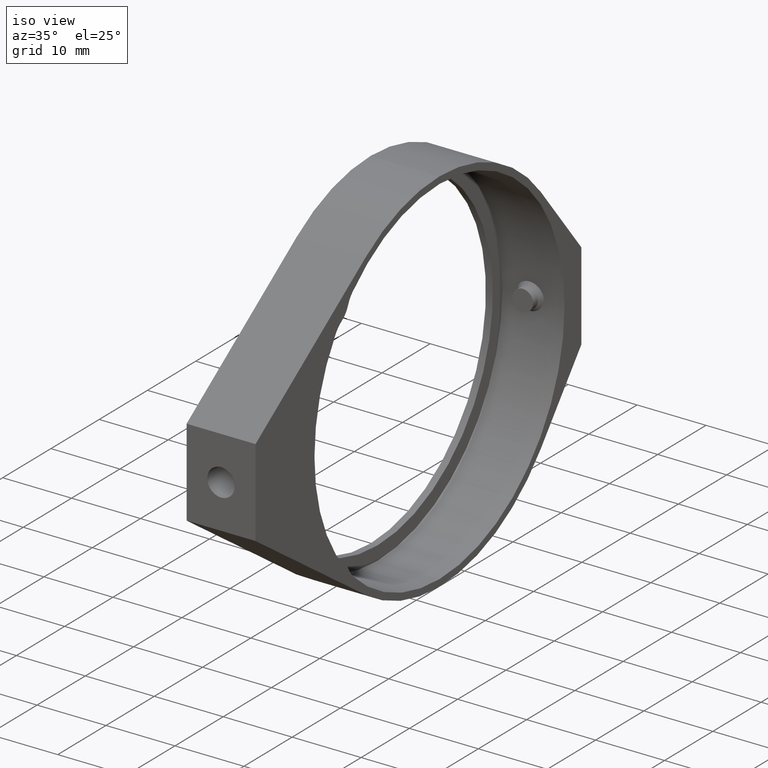
[diagram: clean part render]
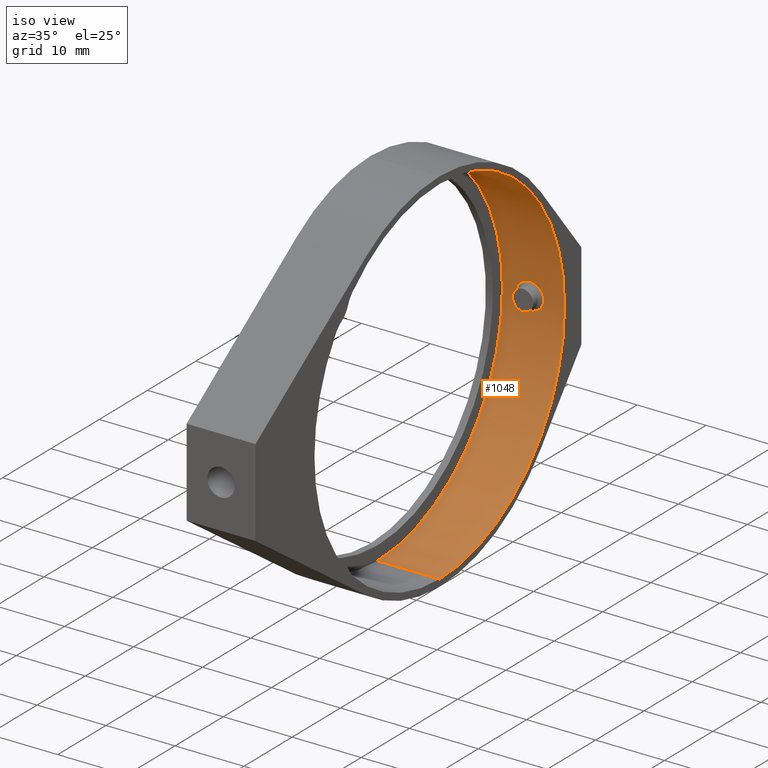
[diagram: same view with one face highlighted and labeled with its STEP entity id]
A machine part, iso view. The second image highlights one B-rep face of the part: STEP entity #1048.
In plain terms, the highlighted cylindrical surface (partial cylindrical patch) has radius 25.9 mm, axis along (1, -0, -0).
Its self-contained STEP definition (entity closure, byte-faithful):
#54 = CARTESIAN_POINT ( 'NONE',  ( -13.73579953026559508, 28.22271537698156507, 65.89323594368823933 ) ) ;
#59 = EDGE_CURVE ( 'NONE', #255, #584, #500, .T. ) ;
#64 = CARTESIAN_POINT ( 'NONE',  ( -14.95328171391102323, 28.27246623560505867, 67.38978657148210516 ) ) ;
#73 = CIRCLE ( 'NONE', #1510, 25.90000000000000568 ) ;
#83 = CARTESIAN_POINT ( 'NONE',  ( -14.13493462010249324, 28.23247269268667026, 68.94124334256203213 ) ) ;
#85 = VERTEX_POINT ( 'NONE', #998 ) ;
#109 = CARTESIAN_POINT ( 'NONE',  ( -12.87480107323097478, 28.22319709639868890, 65.90298586691871208 ) ) ;
#117 = CARTESIAN_POINT ( 'NONE',  ( -12.77135237706797177, 28.22514231824622044, 69.06561637109555818 ) ) ;
#127 = CARTESIAN_POINT ( 'NONE',  ( -13.30337078651685978, 28.21986055964568862, 69.14999999999999147 ) ) ;
#161 = LINE ( 'NONE', #1449, #195 ) ;
#176 = CARTESIAN_POINT ( 'NONE',  ( -17.30337078651686511, 2.372471910112824212, 67.49999999999998579 ) ) ;
#180 = ORIENTED_EDGE ( 'NONE', *, *, #59, .T. ) ;
#183 = DIRECTION ( 'NONE',  ( 0.0000000000000000000, 0.0000000000000000000, -1.000000000000000000 ) ) ;
#188 = DIRECTION ( 'NONE',  ( 0.0000000000000000000, 0.0000000000000000000, -1.000000000000000000 ) ) ;
#190 = CARTESIAN_POINT ( 'NONE',  ( -13.30337078651685978, 28.21986055964568862, 69.14999999999999147 ) ) ;
#195 = VECTOR ( 'NONE', #853, 1000.000000000000000 ) ;
#214 = CARTESIAN_POINT ( 'NONE',  ( -11.86134212127736376, 28.25992446796724522, 68.33021134928753781 ) ) ;
#223 = CARTESIAN_POINT ( 'NONE',  ( -12.21340914872167183, 28.24271733238981952, 66.25647716844902391 ) ) ;
#232 = EDGE_CURVE ( 'NONE', #917, #85, #161, .T. ) ;
#241 = CARTESIAN_POINT ( 'NONE',  ( -11.69677966538301206, 28.26961245292752167, 67.93308489393207594 ) ) ;
#255 = VERTEX_POINT ( 'NONE', #1454 ) ;
#265 = DIRECTION ( 'NONE',  ( 1.000000000000000000, -0.0000000000000000000, -0.0000000000000000000 ) ) ;
#288 = CARTESIAN_POINT ( 'NONE',  ( -86.15498967708690259, 2.372471910112827320, 93.39999999999999147 ) ) ;
#295 = CARTESIAN_POINT ( 'NONE',  ( -14.61508341691907731, 28.25305354240657252, 66.49324992588778116 ) ) ;
#301 = VECTOR ( 'NONE', #265, 1000.000000000000000 ) ;
#304 = CARTESIAN_POINT ( 'NONE',  ( -14.54698385271192507, 28.24964909940132429, 68.58973151410096136 ) ) ;
#310 = CARTESIAN_POINT ( 'NONE',  ( -14.78571076301726173, 28.26229848878795181, 66.76730588477570905 ) ) ;
#326 = CARTESIAN_POINT ( 'NONE',  ( -14.54538850122621518, 28.24957235513279485, 66.40845958775186375 ) ) ;
#329 = CIRCLE ( 'NONE', #1192, 25.90000000000000568 ) ;
#331 = VERTEX_POINT ( 'NONE', #834 ) ;
#388 = EDGE_CURVE ( 'NONE', #331, #917, #73, .T. ) ;
#389 = FACE_OUTER_BOUND ( 'NONE', #1005, .T. ) ;
#393 = FACE_BOUND ( 'NONE', #426, .T. ) ;
#424 = CARTESIAN_POINT ( 'NONE',  ( -14.13294337178544957, 28.23240778304566945, 66.05760800167001889 ) ) ;
#426 = EDGE_LOOP ( 'NONE', ( #1057, #180 ) ) ;
#435 = ORIENTED_EDGE ( 'NONE', *, *, #981, .F. ) ;
#458 = CARTESIAN_POINT ( 'NONE',  ( -17.30337078651686511, 2.372471910112824212, 41.59999999999998010 ) ) ;
#475 = CARTESIAN_POINT ( 'NONE',  ( -12.29684856999777054, 28.23929649214412763, 66.18814419301418184 ) ) ;
#500 = B_SPLINE_CURVE_WITH_KNOTS ( 'NONE', 3,
 ( #1248, #1487, #54, #424, #1138, #326, #295, #793, #310, #1017, #775, #638, #64, #655, #990, #1106, #1363, #1126, #304, #1234, #83, #532, #1473, #190 ),
 .UNSPECIFIED., .F., .F.,
 ( 4, 2, 2, 2, 2, 2, 2, 2, 2, 2, 2, 4 ),
 ( 0.005159958450773272955, 0.005804805369157076123, 0.006449652287540878423, 0.006772075746732765696, 0.007094499205924652101, 0.007416922665116538506, 0.007739346124308425778, 0.008384193042692240222, 0.008706616501884149179, 0.009029039961076056400, 0.009673886879459872579, 0.01031873379784368876 ),
 .UNSPECIFIED. ) ;
#532 = CARTESIAN_POINT ( 'NONE',  ( -13.73803892404055560, 28.22275389029962511, 69.10615827116403409 ) ) ;
#546 = DIRECTION ( 'NONE',  ( 1.000000000000000000, -0.0000000000000000000, 0.0000000000000000000 ) ) ;
#581 = CARTESIAN_POINT ( 'NONE',  ( -11.65344791739861563, 28.27246699636971172, 67.71588873271068110 ) ) ;
#584 = VERTEX_POINT ( 'NONE', #1501 ) ;
#588 = CARTESIAN_POINT ( 'NONE',  ( -11.66406824651750362, 28.27178407305184393, 67.28359731462953164 ) ) ;
#598 = CARTESIAN_POINT ( 'NONE',  ( -12.57152925950629374, 28.23002623499514385, 68.98276976930937110 ) ) ;
#606 = CARTESIAN_POINT ( 'NONE',  ( -13.19566958019755276, 28.21986055964568152, 65.84999999999996589 ) ) ;
#627 = LINE ( 'NONE', #288, #301 ) ;
#638 = CARTESIAN_POINT ( 'NONE',  ( -14.94252438791280291, 28.27177467492883522, 67.28265579236546046 ) ) ;
#655 = CARTESIAN_POINT ( 'NONE',  ( -14.95354729529917215, 28.27248315487710784, 67.71640185420748992 ) ) ;
#682 = CARTESIAN_POINT ( 'NONE',  ( -13.08628238397355936, 28.22055594031218106, 65.86079325102394932 ) ) ;
#711 = CARTESIAN_POINT ( 'NONE',  ( -12.57199520350698130, 28.23001283162552255, 66.01699697615705986 ) ) ;
#722 = CARTESIAN_POINT ( 'NONE',  ( -11.65333237946684974, 28.27247435689385213, 67.39294109099400032 ) ) ;
#775 = CARTESIAN_POINT ( 'NONE',  ( -14.90045050045338293, 28.26914588163482378, 67.07174841402046184 ) ) ;
#793 = CARTESIAN_POINT ( 'NONE',  ( -14.73499160395600605, 28.25940787723703096, 66.67259588376867896 ) ) ;
#809 = CARTESIAN_POINT ( 'NONE',  ( -12.77193215164037632, 28.22513017356651588, 65.93418353900882778 ) ) ;
#819 = CARTESIAN_POINT ( 'NONE',  ( -11.73738598921434395, 28.26722245321694871, 66.96907535136951140 ) ) ;
#827 = CARTESIAN_POINT ( 'NONE',  ( -12.47676067605154770, 28.23291955873300196, 68.93207656143292184 ) ) ;
#834 = CARTESIAN_POINT ( 'NONE',  ( -17.30337078651686511, 2.372471910112827320, 93.40000000000000568 ) ) ;
#835 = CARTESIAN_POINT ( 'NONE',  ( -12.29740871975687533, 28.23927356768272290, 68.81231393834286791 ) ) ;
#841 = VERTEX_POINT ( 'NONE', #931 ) ;
#849 = ORIENTED_EDGE ( 'NONE', *, *, #1522, .T. ) ;
#853 = DIRECTION ( 'NONE',  ( 1.000000000000000000, -0.0000000000000000000, -0.0000000000000000000 ) ) ;
#873 = DIRECTION ( 'NONE',  ( 0.0000000000000000000, 0.0000000000000000000, -1.000000000000000000 ) ) ;
#882 = DIRECTION ( 'NONE',  ( -1.000000000000000000, -0.0000000000000000000, -0.0000000000000000000 ) ) ;
#917 = VERTEX_POINT ( 'NONE', #458 ) ;
#931 = CARTESIAN_POINT ( 'NONE',  ( -8.303370786516859781, 2.372471910112827320, 93.40000000000000568 ) ) ;
#945 = ORIENTED_EDGE ( 'NONE', *, *, #232, .T. ) ;
#971 = DIRECTION ( 'NONE',  ( 1.000000000000000000, -0.0000000000000000000, -0.0000000000000000000 ) ) ;
#981 = EDGE_CURVE ( 'NONE', #331, #841, #627, .T. ) ;
#990 = CARTESIAN_POINT ( 'NONE',  ( -14.91083542209245572, 28.26966520295258078, 67.93060405254922784 ) ) ;
#998 = CARTESIAN_POINT ( 'NONE',  ( -8.303370786516859781, 2.372471910112824212, 41.59999999999998010 ) ) ;
#1003 = B_SPLINE_CURVE_WITH_KNOTS ( 'NONE', 3,
 ( #127, #1171, #1164, #1285, #117, #598, #827, #835, #1311, #1065, #214, #241, #581, #722, #588, #1045, #819, #1295, #1054, #1193, #1536, #223, #475, #1395, #711, #809, #109, #682, #606, #1419 ),
 .UNSPECIFIED., .F., .F.,
 ( 4, 2, 2, 2, 2, 2, 2, 2, 2, 2, 2, 2, 2, 2, 4 ),
 ( 0.0000000000000000000, 0.0003224974031733522737, 0.0006449948063467045474, 0.0009674922095200568211, 0.001289989612693409095, 0.001934984419040080682, 0.002579979225386752704, 0.002902476628560067898, 0.003224974031733382658, 0.003547471434906697852, 0.003869968838080012612, 0.004192466241253327806, 0.004514963644426643434, 0.004837461047599957327, 0.005159958450773272955 ),
 .UNSPECIFIED. ) ;
#1005 = EDGE_LOOP ( 'NONE', ( #435, #1328, #945, #849 ) ) ;
#1017 = CARTESIAN_POINT ( 'NONE',  ( -14.86859575379858178, 28.26717634299145132, 66.96685529711581353 ) ) ;
#1045 = CARTESIAN_POINT ( 'NONE',  ( -11.70621266326648247, 28.26915068879752013, 67.07194758589723449 ) ) ;
#1048 = ADVANCED_FACE ( 'NONE', ( #389, #393 ), #1225, .F. ) ;
#1054 = CARTESIAN_POINT ( 'NONE',  ( -11.87173372118445691, 28.25940929036651639, 66.67267079968266330 ) ) ;
#1057 = ORIENTED_EDGE ( 'NONE', *, *, #1319, .T. ) ;
#1065 = CARTESIAN_POINT ( 'NONE',  ( -11.98426017209784611, 28.25305235818096250, 68.51428567028298744 ) ) ;
#1106 = CARTESIAN_POINT ( 'NONE',  ( -14.78672596921000526, 28.26235675093517230, 68.23066613658487256 ) ) ;
#1126 = CARTESIAN_POINT ( 'NONE',  ( -14.61659575206285488, 28.25313070078080102, 68.50476248827408199 ) ) ;
#1138 = CARTESIAN_POINT ( 'NONE',  ( -14.31706655187156230, 28.23928379052631144, 66.18045659556321425 ) ) ;
#1164 = CARTESIAN_POINT ( 'NONE',  ( -13.08710070495700606, 28.22055019153945921, 69.13929574628568275 ) ) ;
#1171 = CARTESIAN_POINT ( 'NONE',  ( -13.19432173540718800, 28.21986055964569218, 69.15000000000001990 ) ) ;
#1192 = AXIS2_PLACEMENT_3D ( 'NONE', #1240, #546, #183 ) ;
#1193 = CARTESIAN_POINT ( 'NONE',  ( -11.99119552297795721, 28.25307750898910086, 66.49389147191371308 ) ) ;
#1225 = CYLINDRICAL_SURFACE ( 'NONE', #1321, 25.90000000000000568 ) ;
#1234 = CARTESIAN_POINT ( 'NONE',  ( -14.31878747252140194, 28.23935178295220538, 68.81824955100577768 ) ) ;
#1240 = CARTESIAN_POINT ( 'NONE',  ( -8.303370786516859781, 2.372471910112824212, 67.49999999999998579 ) ) ;
#1248 = CARTESIAN_POINT ( 'NONE',  ( -13.30337078651685978, 28.21986055964568862, 65.84999999999999432 ) ) ;
#1285 = CARTESIAN_POINT ( 'NONE',  ( -12.87616347556959617, 28.22317565645420245, 69.09735944778921635 ) ) ;
#1295 = CARTESIAN_POINT ( 'NONE',  ( -11.82005690749908666, 28.26235443916063872, 66.76926796688573518 ) ) ;
#1311 = CARTESIAN_POINT ( 'NONE',  ( -12.21251456525122592, 28.24275776424357787, 68.74262414391061782 ) ) ;
#1319 = EDGE_CURVE ( 'NONE', #584, #255, #1003, .T. ) ;
#1321 = AXIS2_PLACEMENT_3D ( 'NONE', #1467, #971, #873 ) ;
#1328 = ORIENTED_EDGE ( 'NONE', *, *, #388, .T. ) ;
#1363 = CARTESIAN_POINT ( 'NONE',  ( -14.73610168595655878, 28.25946975573130260, 68.32546328674676772 ) ) ;
#1395 = CARTESIAN_POINT ( 'NONE',  ( -12.47554444376971183, 28.23295959768318397, 66.06865232143867672 ) ) ;
#1419 = CARTESIAN_POINT ( 'NONE',  ( -13.30337078651685978, 28.21986055964568862, 65.84999999999999432 ) ) ;
#1449 = CARTESIAN_POINT ( 'NONE',  ( -86.15498967708690259, 2.372471910112824212, 41.59999999999998721 ) ) ;
#1454 = CARTESIAN_POINT ( 'NONE',  ( -13.30337078651685978, 28.21986055964568862, 65.84999999999999432 ) ) ;
#1467 = CARTESIAN_POINT ( 'NONE',  ( -86.15498967708690259, 2.372471910112824212, 67.49999999999998579 ) ) ;
#1473 = CARTESIAN_POINT ( 'NONE',  ( -13.52141888200170250, 28.21986055964569218, 69.15000000000000568 ) ) ;
#1487 = CARTESIAN_POINT ( 'NONE',  ( -13.51872381050351990, 28.21986055964569928, 65.84999999999999432 ) ) ;
#1501 = CARTESIAN_POINT ( 'NONE',  ( -13.30337078651685978, 28.21986055964568862, 69.14999999999999147 ) ) ;
#1510 = AXIS2_PLACEMENT_3D ( 'NONE', #176, #882, #188 ) ;
#1522 = EDGE_CURVE ( 'NONE', #85, #841, #329, .T. ) ;
#1536 = CARTESIAN_POINT ( 'NONE',  ( -12.05939322093415811, 28.24966383699414862, 66.41055738068466496 ) ) ;